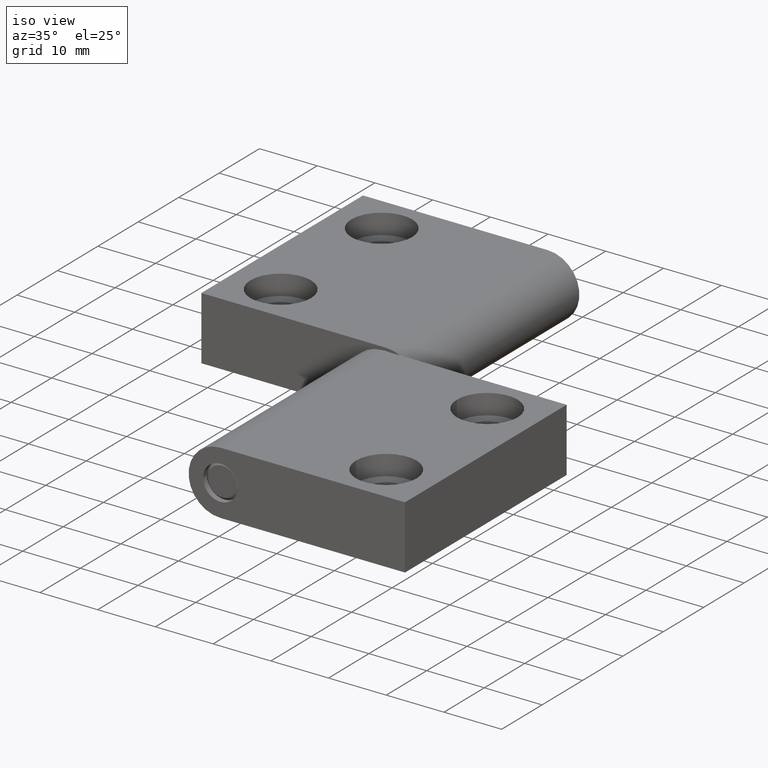
[diagram: clean part render]
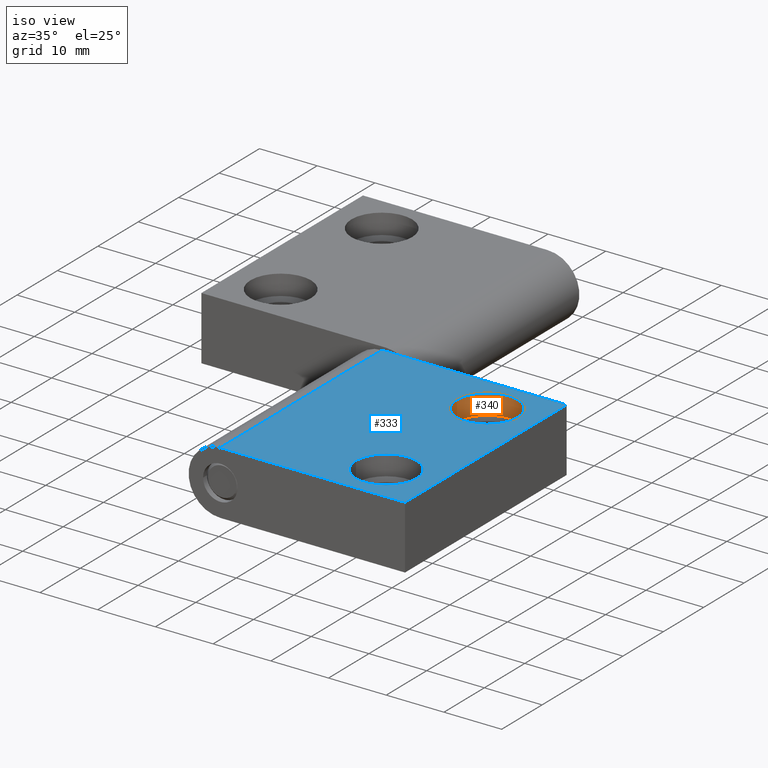
[diagram: same view with the hole feature highlighted: cylindrical wall and planar end face, labeled with their STEP entity ids]
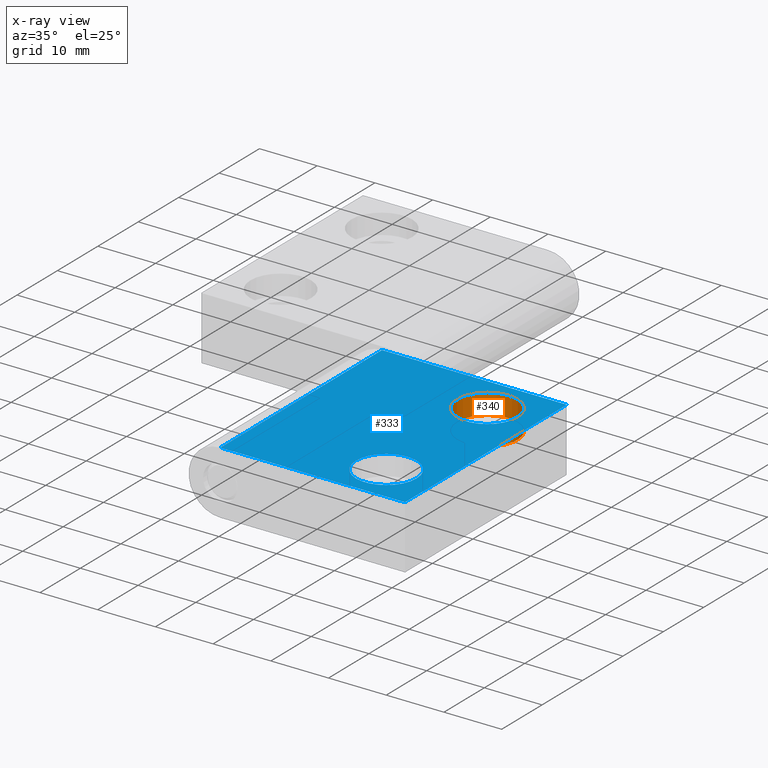
[diagram: x-ray of the same camera — body ghosted, the hole faces saturated]
A machine part, iso view. The highlighted faces form one hole feature of diameter 10.5 mm: the cylindrical wall (entity #340, orange) and its adjacent planar end face (entity #333, blue) — they share a circular edge in the B-rep.
The next image is the same camera in x-ray (body ghosted, the hole faces saturated) — the bore reads through the body.
Wall:
#71=FACE_OUTER_BOUND('',#100,.T.);
#100=EDGE_LOOP('',(#282,#283,#284,#285));
#128=LINE('',#664,#148);
#148=VECTOR('',#550,5.24998949997894);
#160=CIRCLE('',#453,5.24998949997894);
#165=CIRCLE('',#464,5.24998949997894);
#184=VERTEX_POINT('',#637);
#191=VERTEX_POINT('',#661);
#212=EDGE_CURVE('',#184,#184,#160,.T.);
#223=EDGE_CURVE('',#191,#191,#165,.T.);
#224=EDGE_CURVE('',#191,#184,#128,.T.);
#282=ORIENTED_EDGE('',*,*,#223,.F.);
#283=ORIENTED_EDGE('',*,*,#224,.T.);
#284=ORIENTED_EDGE('',*,*,#212,.T.);
#285=ORIENTED_EDGE('',*,*,#224,.F.);
#325=CYLINDRICAL_SURFACE('',#465,5.24998949997894);
#340=ADVANCED_FACE('',(#71),#325,.F.);
#453=AXIS2_PLACEMENT_3D('',#638,#518,#519);
#464=AXIS2_PLACEMENT_3D('',#662,#546,#547);
#465=AXIS2_PLACEMENT_3D('',#663,#548,#549);
#518=DIRECTION('center_axis',(0.,0.,1.));
#519=DIRECTION('ref_axis',(1.,0.,0.));
#546=DIRECTION('center_axis',(0.,0.,1.));
#547=DIRECTION('ref_axis',(1.,0.,0.));
#548=DIRECTION('center_axis',(0.,0.,1.));
#549=DIRECTION('ref_axis',(1.,0.,0.));
#550=DIRECTION('',(0.,0.,1.));
#637=CARTESIAN_POINT('',(26.7499214999352,64.99986999974,11.4999759999521));
#638=CARTESIAN_POINT('Origin',(31.9999109999142,64.99986999974,11.4999759999521));
#661=CARTESIAN_POINT('',(26.7499214999352,64.99986999974,7.99998399996798));
#662=CARTESIAN_POINT('Origin',(31.9999109999142,64.99986999974,7.99998399996798));
#663=CARTESIAN_POINT('Origin',(31.9999109999142,64.99986999974,7.99998399996798));
#664=CARTESIAN_POINT('',(26.7499214999352,64.99986999974,7.99998399996798));
End face:
#41=FACE_BOUND('',#87,.T.);
#42=FACE_BOUND('',#88,.T.);
#51=PLANE('',#452);
#64=FACE_OUTER_BOUND('',#86,.T.);
#86=EDGE_LOOP('',(#250,#251,#252,#253));
#87=EDGE_LOOP('',(#254));
#88=EDGE_LOOP('',(#255));
#118=LINE('',#630,#138);
#119=LINE('',#633,#139);
#120=LINE('',#635,#140);
#121=LINE('',#636,#141);
#138=VECTOR('',#512,10.);
#139=VECTOR('',#515,10.);
#140=VECTOR('',#516,10.);
#141=VECTOR('',#517,10.);
#160=CIRCLE('',#453,5.24998949997894);
#161=CIRCLE('',#454,5.24998949997894);
#178=VERTEX_POINT('',#623);
#181=VERTEX_POINT('',#628);
#182=VERTEX_POINT('',#632);
#183=VERTEX_POINT('',#634);
#184=VERTEX_POINT('',#637);
#185=VERTEX_POINT('',#639);
#208=EDGE_CURVE('',#181,#178,#118,.T.);
#209=EDGE_CURVE('',#182,#181,#119,.T.);
#210=EDGE_CURVE('',#183,#182,#120,.T.);
#211=EDGE_CURVE('',#178,#183,#121,.T.);
#212=EDGE_CURVE('',#184,#184,#160,.T.);
#213=EDGE_CURVE('',#185,#185,#161,.T.);
#250=ORIENTED_EDGE('',*,*,#209,.F.);
#251=ORIENTED_EDGE('',*,*,#210,.F.);
#252=ORIENTED_EDGE('',*,*,#211,.F.);
#253=ORIENTED_EDGE('',*,*,#208,.F.);
#254=ORIENTED_EDGE('',*,*,#212,.F.);
#255=ORIENTED_EDGE('',*,*,#213,.F.);
#333=ADVANCED_FACE('',(#64,#41,#42),#51,.T.);
#452=AXIS2_PLACEMENT_3D('',#631,#513,#514);
#453=AXIS2_PLACEMENT_3D('',#638,#518,#519);
#454=AXIS2_PLACEMENT_3D('',#640,#520,#521);
#512=DIRECTION('',(0.,1.,0.));
#513=DIRECTION('center_axis',(0.,0.,1.));
#514=DIRECTION('ref_axis',(1.,0.,0.));
#515=DIRECTION('',(-1.,0.,0.));
#516=DIRECTION('',(0.,-1.,0.));
#517=DIRECTION('',(1.,0.,0.));
#518=DIRECTION('center_axis',(0.,0.,1.));
#519=DIRECTION('ref_axis',(1.,0.,0.));
#520=DIRECTION('center_axis',(0.,0.,1.));
#521=DIRECTION('ref_axis',(1.,0.,0.));
#623=CARTESIAN_POINT('',(8.49989699988602,72.4998549997101,11.4999759999521));
#628=CARTESIAN_POINT('',(8.49989699988602,32.4998549997101,11.4999759999521));
#630=CARTESIAN_POINT('',(8.49989699988602,32.4998549997101,11.4999759999521));
#631=CARTESIAN_POINT('Origin',(25.74993699992,52.4998549997101,11.4999759999521));
#632=CARTESIAN_POINT('',(40.499896999886,32.4998549997101,11.4999759999521));
#633=CARTESIAN_POINT('',(13.999896999886,32.4998549997101,11.4999759999521));
#634=CARTESIAN_POINT('',(40.499896999886,72.4998549997101,11.4999759999521));
#635=CARTESIAN_POINT('',(40.499896999886,62.4998549997101,11.4999759999521));
#636=CARTESIAN_POINT('',(13.6249652722918,72.4998549997101,11.4999759999521));
#637=CARTESIAN_POINT('',(26.7499214999352,64.99986999974,11.4999759999521));
#638=CARTESIAN_POINT('Origin',(31.9999109999142,64.99986999974,11.4999759999521));
#639=CARTESIAN_POINT('',(26.7499214999352,39.9999199998401,11.4999759999521));
#640=CARTESIAN_POINT('Origin',(31.9999109999142,39.9999199998401,11.4999759999521));